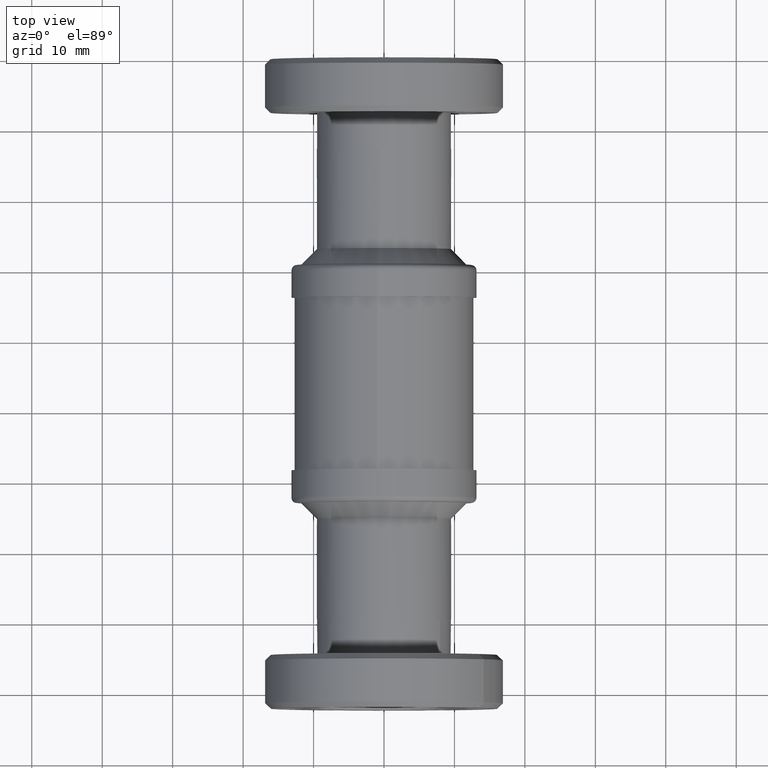
[diagram: clean part render]
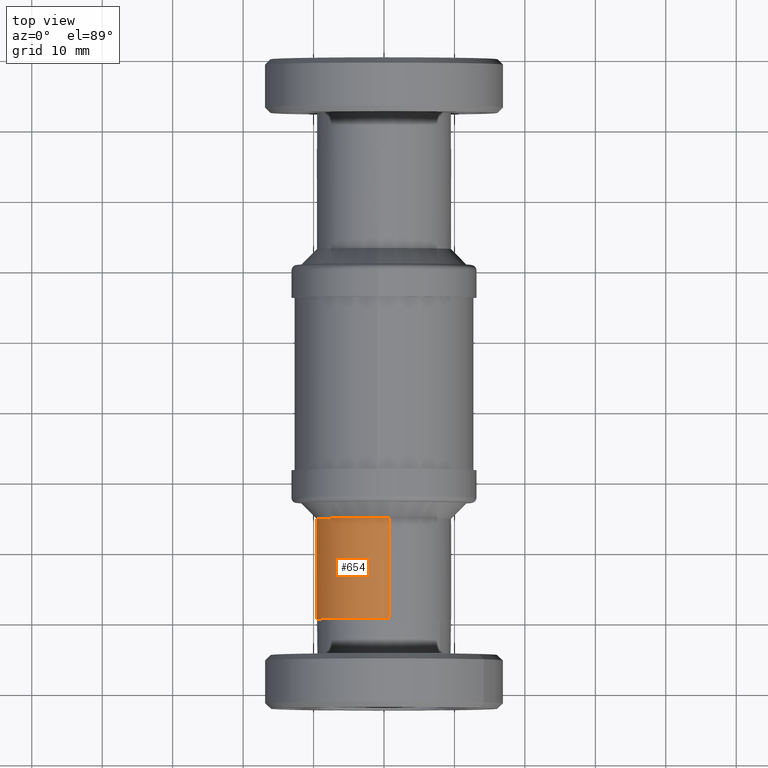
[diagram: same view with one face highlighted and labeled with its STEP entity id]
A machine part, top view. The second image highlights one B-rep face of the part: STEP entity #654.
In plain terms, the highlighted cylindrical surface (partial cylindrical patch) has radius 9.525 mm, axis along (0, 1, 0).
Its self-contained STEP definition (entity closure, byte-faithful):
#2 = DIRECTION ( 'NONE',  ( 0.0000000000000000000, 1.000000000000000000, 0.0000000000000000000 ) ) ;
#96 = LINE ( 'NONE', #2383, #2217 ) ;
#153 = DIRECTION ( 'NONE',  ( 0.08622518499638291700, 0.0000000000000000000, 0.9962756734319772045 ) ) ;
#255 = CARTESIAN_POINT ( 'NONE',  ( 1.102182119232617048E-16, -3.130000000000000338, 0.0000000000000000000 ) ) ;
#318 = DIRECTION ( 'NONE',  ( 0.0000000000000000000, 1.000000000000000000, 0.0000000000000000000 ) ) ;
#598 = CARTESIAN_POINT ( 'NONE',  ( 0.03233444437364370316, -3.130000000000000338, 0.3736033775369914101 ) ) ;
#619 = AXIS2_PLACEMENT_3D ( 'NONE', #255, #2, #1040 ) ;
#654 = ADVANCED_FACE ( 'NONE', ( #1459 ), #3112, .T. ) ;
#782 = CARTESIAN_POINT ( 'NONE',  ( -0.03233444437364337704, -2.568713203435597059, -0.3736033775369908549 ) ) ;
#789 = EDGE_CURVE ( 'NONE', #1642, #2802, #1314, .T. ) ;
#797 = ORIENTED_EDGE ( 'NONE', *, *, #1913, .T. ) ;
#800 = DIRECTION ( 'NONE',  ( 0.0000000000000000000, 1.000000000000000000, 0.0000000000000000000 ) ) ;
#868 = CARTESIAN_POINT ( 'NONE',  ( 1.102182119232617048E-16, -2.568713203435597059, 0.0000000000000000000 ) ) ;
#880 = ORIENTED_EDGE ( 'NONE', *, *, #2018, .F. ) ;
#1040 = DIRECTION ( 'NONE',  ( 0.08622518499638293088, 0.0000000000000000000, 0.9962756734319772045 ) ) ;
#1303 = CARTESIAN_POINT ( 'NONE',  ( 0.03233444437364365459, -2.568713203435597059, 0.3736033775369908549 ) ) ;
#1314 = CIRCLE ( 'NONE', #619, 0.3749999999999999445 ) ;
#1338 = DIRECTION ( 'NONE',  ( 0.08622518499638291700, 0.0000000000000000000, 0.9962756734319772045 ) ) ;
#1422 = CIRCLE ( 'NONE', #2440, 0.3749999999999998335 ) ;
#1459 = FACE_OUTER_BOUND ( 'NONE', #2661, .T. ) ;
#1476 = AXIS2_PLACEMENT_3D ( 'NONE', #3127, #800, #1338 ) ;
#1495 = ORIENTED_EDGE ( 'NONE', *, *, #789, .T. ) ;
#1599 = CARTESIAN_POINT ( 'NONE',  ( 0.03233444437364368929, -2.496389121338911998, 0.3736033775369912990 ) ) ;
#1631 = ORIENTED_EDGE ( 'NONE', *, *, #3328, .F. ) ;
#1642 = VERTEX_POINT ( 'NONE', #1720 ) ;
#1720 = CARTESIAN_POINT ( 'NONE',  ( -0.03233444437364343255, -3.130000000000000338, -0.3736033775369914101 ) ) ;
#1913 = EDGE_CURVE ( 'NONE', #2802, #2263, #2850, .T. ) ;
#2018 = EDGE_CURVE ( 'NONE', #2314, #2263, #1422, .T. ) ;
#2152 = DIRECTION ( 'NONE',  ( 0.0000000000000000000, 1.000000000000000000, 0.0000000000000000000 ) ) ;
#2217 = VECTOR ( 'NONE', #2152, 39.37007874015748143 ) ;
#2263 = VERTEX_POINT ( 'NONE', #1303 ) ;
#2314 = VERTEX_POINT ( 'NONE', #782 ) ;
#2383 = CARTESIAN_POINT ( 'NONE',  ( -0.03233444437364342561, -2.496389121338911998, -0.3736033775369912990 ) ) ;
#2440 = AXIS2_PLACEMENT_3D ( 'NONE', #868, #2461, #153 ) ;
#2461 = DIRECTION ( 'NONE',  ( 0.0000000000000000000, 1.000000000000000000, 0.0000000000000000000 ) ) ;
#2661 = EDGE_LOOP ( 'NONE', ( #1631, #1495, #797, #880 ) ) ;
#2662 = VECTOR ( 'NONE', #318, 39.37007874015748143 ) ;
#2802 = VERTEX_POINT ( 'NONE', #598 ) ;
#2850 = LINE ( 'NONE', #1599, #2662 ) ;
#3112 = CYLINDRICAL_SURFACE ( 'NONE', #1476, 0.3749999999999998335 ) ;
#3127 = CARTESIAN_POINT ( 'NONE',  ( 1.102182119232617048E-16, -2.496389121338911998, 0.0000000000000000000 ) ) ;
#3328 = EDGE_CURVE ( 'NONE', #1642, #2314, #96, .T. ) ;